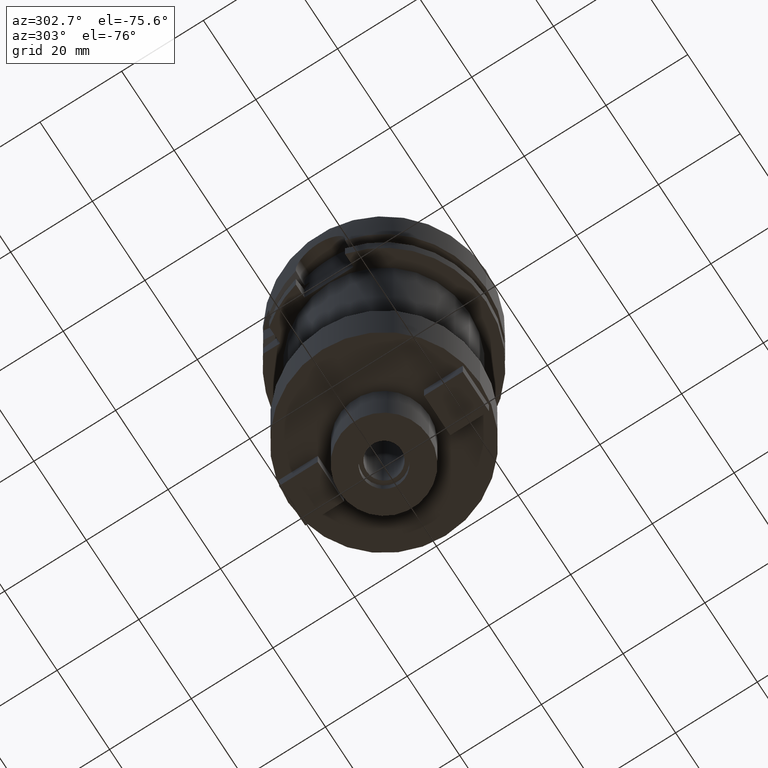
[diagram: clean part render]
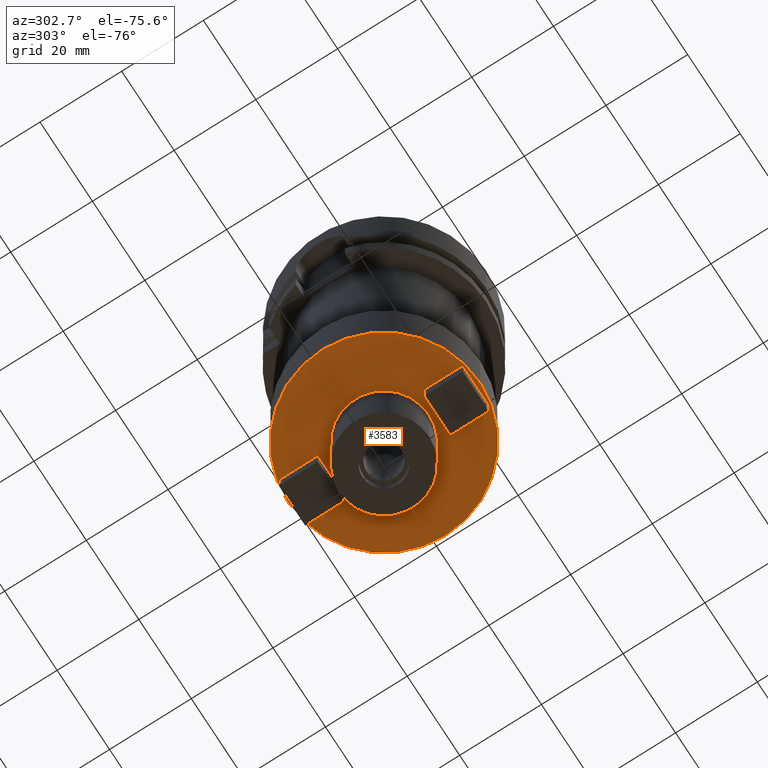
[diagram: same view with one face highlighted and labeled with its STEP entity id]
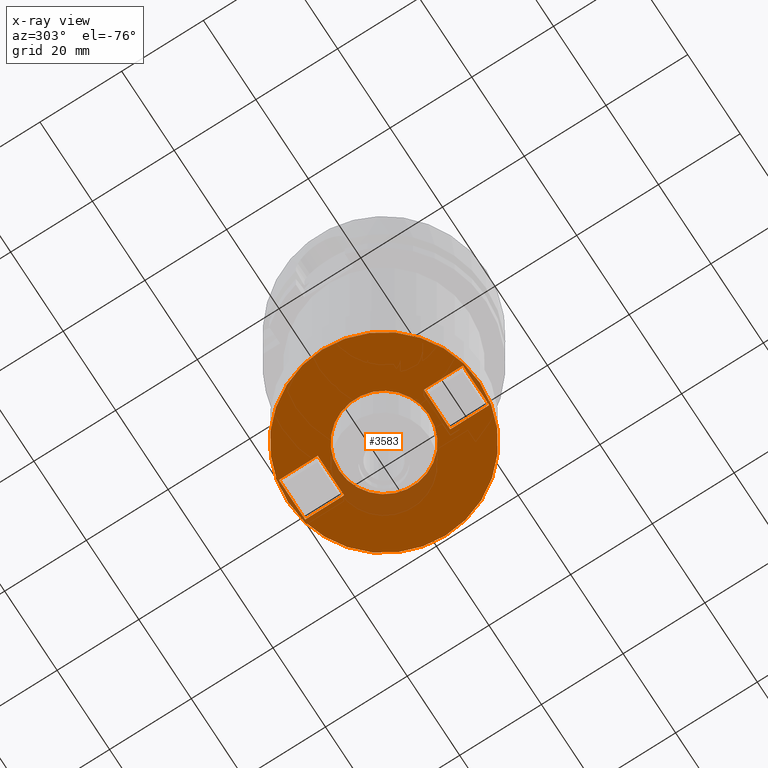
[diagram: x-ray of the same camera — body ghosted, the highlighted face saturated]
A machine part, auxiliary view. The second image highlights one B-rep face of the part: STEP entity #3583.
The next image is the same camera in x-ray: the body ghosted, the highlighted face saturated — about 9% of this face is hidden behind the body in this view.
In plain terms, the highlighted planar face has unit normal (0, 0, 1).
Its self-contained STEP definition (entity closure, byte-faithful):
#1063=CARTESIAN_POINT('',(0.E0,0.E0,-9.E1));
#1064=DIRECTION('',(0.E0,0.E0,1.E0));
#1065=DIRECTION('',(0.E0,-1.E0,0.E0));
#1066=AXIS2_PLACEMENT_3D('',#1063,#1064,#1065);
#1071=CARTESIAN_POINT('',(0.E0,0.E0,-9.E1));
#1072=DIRECTION('',(0.E0,0.E0,1.E0));
#1073=DIRECTION('',(0.E0,1.E0,0.E0));
#1074=AXIS2_PLACEMENT_3D('',#1071,#1072,#1073);
#1079=CARTESIAN_POINT('',(0.E0,0.E0,-9.E1));
#1080=DIRECTION('',(0.E0,0.E0,-1.E0));
#1081=DIRECTION('',(0.E0,-1.E0,0.E0));
#1082=AXIS2_PLACEMENT_3D('',#1079,#1080,#1081);
#1087=CARTESIAN_POINT('',(0.E0,0.E0,-9.E1));
#1088=DIRECTION('',(0.E0,0.E0,-1.E0));
#1089=DIRECTION('',(0.E0,1.E0,0.E0));
#1090=AXIS2_PLACEMENT_3D('',#1087,#1088,#1089);
#1095=DIRECTION('',(0.E0,1.E0,0.E0));
#1096=VECTOR('',#1095,9.5E0);
#1097=CARTESIAN_POINT('',(-5.E0,1.3E1,-9.E1));
#1098=LINE('',#1097,#1096);
#1102=DIRECTION('',(-1.E0,0.E0,0.E0));
#1103=VECTOR('',#1102,1.E1);
#1104=CARTESIAN_POINT('',(5.E0,1.3E1,-9.E1));
#1105=LINE('',#1104,#1103);
#1109=DIRECTION('',(0.E0,-1.E0,0.E0));
#1110=VECTOR('',#1109,9.5E0);
#1111=CARTESIAN_POINT('',(5.E0,-1.3E1,-9.E1));
#1112=LINE('',#1111,#1110);
#1116=DIRECTION('',(1.E0,0.E0,0.E0));
#1117=VECTOR('',#1116,1.E1);
#1118=CARTESIAN_POINT('',(-5.E0,-1.3E1,-9.E1));
#1119=LINE('',#1118,#1117);
#2193=DIRECTION('',(0.E0,1.E0,0.E0));
#2194=VECTOR('',#2193,9.5E0);
#2195=CARTESIAN_POINT('',(5.E0,1.3E1,-9.E1));
#2196=LINE('',#2195,#2194);
#2221=DIRECTION('',(-1.E0,0.E0,0.E0));
#2222=VECTOR('',#2221,1.E1);
#2223=CARTESIAN_POINT('',(5.E0,2.25E1,-9.E1));
#2224=LINE('',#2223,#2222);
#2263=DIRECTION('',(0.E0,-1.E0,0.E0));
#2264=VECTOR('',#2263,9.5E0);
#2265=CARTESIAN_POINT('',(-5.E0,-1.3E1,-9.E1));
#2266=LINE('',#2265,#2264);
#2291=DIRECTION('',(1.E0,0.E0,0.E0));
#2292=VECTOR('',#2291,1.E1);
#2293=CARTESIAN_POINT('',(-5.E0,-2.25E1,-9.E1));
#2294=LINE('',#2293,#2292);
#2573=CARTESIAN_POINT('',(0.E0,1.1E1,-9.E1));
#2574=VERTEX_POINT('',#2573);
#2575=CARTESIAN_POINT('',(0.E0,-1.1E1,-9.E1));
#2576=VERTEX_POINT('',#2575);
#2577=CARTESIAN_POINT('',(0.E0,-2.35E1,-9.E1));
#2578=CARTESIAN_POINT('',(0.E0,2.35E1,-9.E1));
#2579=VERTEX_POINT('',#2577);
#2580=VERTEX_POINT('',#2578);
#2581=CARTESIAN_POINT('',(-5.E0,1.3E1,-9.E1));
#2582=CARTESIAN_POINT('',(-5.E0,2.25E1,-9.E1));
#2583=VERTEX_POINT('',#2581);
#2584=VERTEX_POINT('',#2582);
#2585=CARTESIAN_POINT('',(5.E0,2.25E1,-9.E1));
#2586=VERTEX_POINT('',#2585);
#2587=CARTESIAN_POINT('',(5.E0,1.3E1,-9.E1));
#2588=VERTEX_POINT('',#2587);
#2589=CARTESIAN_POINT('',(5.E0,-1.3E1,-9.E1));
#2590=CARTESIAN_POINT('',(5.E0,-2.25E1,-9.E1));
#2591=VERTEX_POINT('',#2589);
#2592=VERTEX_POINT('',#2590);
#2593=CARTESIAN_POINT('',(-5.E0,-2.25E1,-9.E1));
#2594=VERTEX_POINT('',#2593);
#2595=CARTESIAN_POINT('',(-5.E0,-1.3E1,-9.E1));
#2596=VERTEX_POINT('',#2595);
#3548=CARTESIAN_POINT('',(0.E0,0.E0,-9.E1));
#3549=DIRECTION('',(0.E0,0.E0,1.E0));
#3550=DIRECTION('',(0.E0,1.E0,0.E0));
#3551=AXIS2_PLACEMENT_3D('',#3548,#3549,#3550);
#3552=PLANE('',#3551);
#3554=ORIENTED_EDGE('',*,*,#3553,.T.);
#3556=ORIENTED_EDGE('',*,*,#3555,.T.);
#3557=EDGE_LOOP('',(#3554,#3556));
#3558=FACE_OUTER_BOUND('',#3557,.F.);
#3559=ORIENTED_EDGE('',*,*,#3541,.T.);
#3560=ORIENTED_EDGE('',*,*,#3530,.T.);
#3561=EDGE_LOOP('',(#3559,#3560));
#3562=FACE_BOUND('',#3561,.F.);
#3564=ORIENTED_EDGE('',*,*,#3563,.T.);
#3566=ORIENTED_EDGE('',*,*,#3565,.F.);
#3568=ORIENTED_EDGE('',*,*,#3567,.F.);
#3570=ORIENTED_EDGE('',*,*,#3569,.T.);
#3571=EDGE_LOOP('',(#3564,#3566,#3568,#3570));
#3572=FACE_BOUND('',#3571,.F.);
#3574=ORIENTED_EDGE('',*,*,#3573,.T.);
#3576=ORIENTED_EDGE('',*,*,#3575,.F.);
#3578=ORIENTED_EDGE('',*,*,#3577,.F.);
#3580=ORIENTED_EDGE('',*,*,#3579,.T.);
#3581=EDGE_LOOP('',(#3574,#3576,#3578,#3580));
#3582=FACE_BOUND('',#3581,.F.);
#1067=CIRCLE('',#1066,2.35E1);
#1075=CIRCLE('',#1074,2.35E1);
#1083=CIRCLE('',#1082,1.1E1);
#1091=CIRCLE('',#1090,1.1E1);
#3530=EDGE_CURVE('',#2574,#2576,#1091,.T.);
#3541=EDGE_CURVE('',#2576,#2574,#1083,.T.);
#3553=EDGE_CURVE('',#2579,#2580,#1067,.T.);
#3555=EDGE_CURVE('',#2580,#2579,#1075,.T.);
#3563=EDGE_CURVE('',#2583,#2584,#1098,.T.);
#3565=EDGE_CURVE('',#2586,#2584,#2224,.T.);
#3567=EDGE_CURVE('',#2588,#2586,#2196,.T.);
#3569=EDGE_CURVE('',#2588,#2583,#1105,.T.);
#3573=EDGE_CURVE('',#2591,#2592,#1112,.T.);
#3575=EDGE_CURVE('',#2594,#2592,#2294,.T.);
#3577=EDGE_CURVE('',#2596,#2594,#2266,.T.);
#3579=EDGE_CURVE('',#2596,#2591,#1119,.T.);
#3583=ADVANCED_FACE('',(#3558,#3562,#3572,#3582),#3552,.F.);